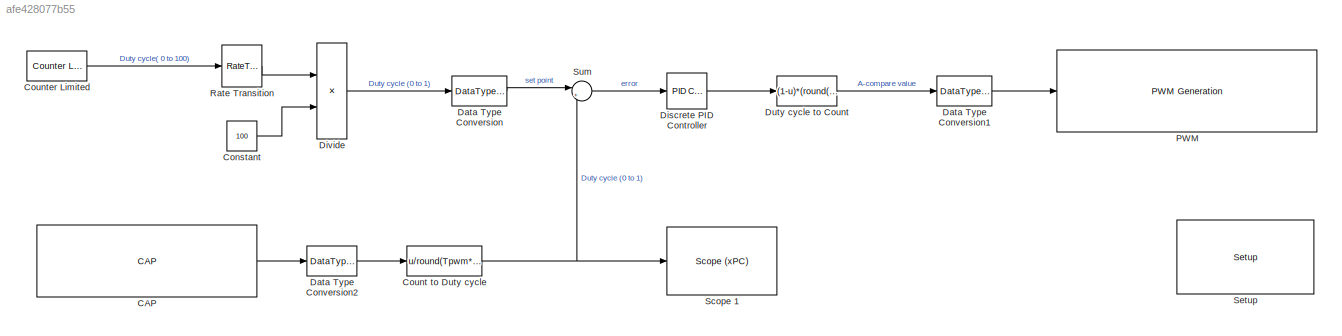
MODEL slx_afe428077b55
KIND model
CONFIG PreLoadFcn = fpga_freq = 33e6;\nTs = 0.001; \nTpwm = 10e-6;
BLOCK [Reference] CAP  REF=speedgoatlib_IO301/CAP/CAP
  Ports = [0, 1]
  SourceBlock = speedgoatlib_IO301/CAP/CAP
  SourceType = cap_IO301
  channel = [1]
  id = 1
  pciSlot = -1
  period = [0]
  startEvent = [1]
  stopEvent = [0]
  ts = Ts
BLOCK [Constant] Constant
  SampleTime = Ts
  Value = 100
BLOCK [Fcn] Count to Duty cycle
  Expr = u/round(Tpwm*fpga_freq-1)
BLOCK [Reference] Counter Limited  REF=simulink/Sources/Counter
Limited
  Ports = [0, 1]
  SourceBlock = simulink/Sources/Counter\nLimited
  SourceType = Counter Limited
  tsamp = 0.02
  uplimit = 100
BLOCK [DataTypeConversion] Data Type Conversion
  OutDataTypeStr = double
  RndMeth = Floor
  SaturateOnIntegerOverflow = off
BLOCK [DataTypeConversion] Data Type Conversion1
  OutDataTypeStr = uint32
  RndMeth = Floor
  SaturateOnIntegerOverflow = off
BLOCK [DataTypeConversion] Data Type Conversion2
  OutDataTypeStr = double
  RndMeth = Floor
  SaturateOnIntegerOverflow = off
BLOCK [Reference] Discrete PID Controller  REF=simulink/Continuous/PID Controller
  AntiWindupMode = none
  Controller = PID
  D = 0
  DOutDataTypeStr = Inherit: Inherit via internal rule
  DOutMax = []
  DOutMin = []
  DParamDataTypeStr = Inherit: Inherit via internal rule
  DParamMax = []
  DParamMin = []
  ExternalReset = none
  FilterContinuousStateAttributes = ''
  FilterMethod = Forward Euler
  FilterOutDataTypeStr = Inherit: Inherit via internal rule
  FilterOutMax = []
  FilterOutMin = []
  FilterRTWStateStorageClass = Auto
  FilterStateMustResolveToSignalObject = off
  Form = Parallel
  I = 316.768608633401
  IOutDataTypeStr = Inherit: Inherit via internal rule
  IOutMax = []
  IOutMin = []
  IParamDataTypeStr = Inherit: Inherit via internal rule
  IParamMax = []
  IParamMin = []
  IgnoreLimit = off
  InitialConditionForFilter = 0
  InitialConditionForIntegrator = 0
  InitialConditionSource = internal
  IntegratorContinuousStateAttributes = ''
  IntegratorMethod = Forward Euler
  IntegratorOutDataTypeStr = Inherit: Inherit via internal rule
  IntegratorOutMax = []
  IntegratorOutMin = []
  IntegratorRTWStateStorageClass = Auto
  IntegratorStateMustResolveToSignalObject = off
  Kb = 1
  KbOutDataTypeStr = Inherit: Inherit via internal rule
  KbOutMax = []
  KbOutMin = []
  KbParamDataTypeStr = Inherit: Inherit via internal rule
  KbParamMax = []
  KbParamMin = []
  Kt = 1
  KtOutDataTypeStr = Inherit: Inherit via internal rule
  KtOutMax = []
  KtOutMin = []
  KtParamDataTypeStr = Inherit: Inherit via internal rule
  KtParamMax = []
  KtParamMin = []
  LimitOutput = off
  LinearizeAsGain = off
  LockScale = off
  LowerSaturationLimit = -inf
  N = 100
  NOutDataTypeStr = Inherit: Inherit via internal rule
  NOutMax = []
  NOutMin = []
  NParamDataTypeStr = Inherit: Inherit via internal rule
  NParamMax = []
  NParamMin = []
  P = 0.158384304316701
  POutDataTypeStr = Inherit: Inherit via internal rule
  POutMax = []
  POutMin = []
  PParamDataTypeStr = Inherit: Inherit via internal rule
  PParamMax = []
  PParamMin = []
  Ports = [1, 1]
  RndMeth = Floor
  SampleTime = -1
  SaturateOnIntegerOverflow = off
  SaturationOutDataTypeStr = Inherit: Same as input
  SaturationOutMax = []
  SaturationOutMin = []
  SourceBlock = simulink/Continuous/PID Controller
  SourceType = PID 1dof
  SumAccumDataTypeStr = Inherit: Inherit via internal rule
  SumDAccumDataTypeStr = Inherit: Inherit via internal rule
  SumDOutDataTypeStr = Inherit: Inherit via internal rule
  SumDOutMax = []
  SumDOutMin = []
  SumI1AccumDataTypeStr = Inherit: Inherit via internal rule
  SumI1OutDataTypeStr = Inherit: Inherit via internal rule
  SumI1OutMax = []
  SumI1OutMin = []
  SumI2AccumDataTypeStr = Inherit: Inherit via internal rule
  SumI2OutDataTypeStr = Inherit: Inherit via internal rule
  SumI2OutMax = []
  SumI2OutMin = []
  SumI3AccumDataTypeStr = Inherit: Inherit via internal rule
  SumI3OutDataTypeStr = Inherit: Inherit via internal rule
  SumI3OutMax = []
  SumI3OutMin = []
  SumOutDataTypeStr = Inherit: Inherit via internal rule
  SumOutMax = []
  SumOutMin = []
  TimeDomain = Discrete-time
  TrackingMode = off
  UpperSaturationLimit = inf
  ZeroCross = on
BLOCK [Product] Divide
  InputSameDT = off
  Inputs = */
  OutDataTypeStr = Inherit: Inherit via internal rule
  Ports = [2, 1]
  RndMeth = Floor
  SampleTime = Ts
  SaturateOnIntegerOverflow = off
BLOCK [Fcn] Duty cycle to Count
  Expr = (1-u)*(round(Tpwm*fpga_freq/2)-1)
BLOCK [Reference] PWM  REF=speedgoatlib_IO301/PWM Generation/PWM Generation
  Ports = [1]
  SourceBlock = speedgoatlib_IO301/PWM Generation/PWM Generation
  SourceType = pwm_IO301
  channel = [1]
  group = Module setup
  id = 1
  initA = [1]
  initActionA = [0,0,2,1]'
  initActionB = [0,0,2,1]'
  initB = [1]
  initC = [round(fpga_freq*Tpwm/2)-1]
  initStart = [1]
  pciSlot = -1
  protection = [0]
  showA = on
  showAStart = off
  showAStop = off
  showActionA = off
  showActionB = off
  showB = off
  showBStart = off
  showBStop = off
  showC = off
  showStart = off
  toggleAStart = [0]
  toggleAStop = [0]
  toggleBStart = [1]
  toggleBStop = [0]
  triggerPulseLength = 32
  triggerSource = [1]
  ts = -1
BLOCK [RateTransition] Rate Transition
BLOCK [Reference] Scope 1  REF=xpclib/Misc./Scope (xPC) 
  Ports = [1]
  SourceBlock = xpclib/Misc./Scope (xPC)
  SourceType = xpcscopeblock
  autorestart = off
  autostart = on
  dynamicfilemode = off
  filename = data.dat
  formatstr = '%15.6f'
  grid = on
  interleave = 1
  maxwritefilesize = 512*1024^2
  mode = Lazy
  noprepostsamples = 0
  nosamples = 4000
  scopeno = 1
  scopetype = Target
  triggerlevel = 0.0
  triggermode = FreeRun
  triggersample = 0
  triggerscope = 1
  triggersignal = 1
  triggerslope = Either
  trigsignalfromport = off
  viewmode = Graphical redraw
  writesize = 512
  ylimits = [0,0]
BLOCK [Reference] Setup  REF=speedgoatlib_IO301/Setup/Setup
  Ports = []
  SourceBlock = speedgoatlib_IO301/Setup/Setup
  SourceType = setup_IO301
  fpga1 = speedgoat_IO301_default
  group = Module setup
  id = 1
  lowerDirection = [1, 1, 1, 1, 1, 0, 0, 0, 0, 0, 0, 0, 1, 1, 1, 1]
  lowerReset = [1]
  lowerValue = [0]
  pciSlot = -1
  upperDirection = [1, 1, 1, 1, 1, 1, 1, 1, 0, 0, 0, 0, 0, 0, 0, 0]
  upperReset = [1]
  upperValue = [0]
BLOCK [Sum] Sum
  IconShape = round
  InputSameDT = off
  Inputs = |+-
  OutDataTypeStr = Inherit: Inherit via internal rule
  Ports = [2, 1]
  SaturateOnIntegerOverflow = off
LINE CAP:1 -> Data Type Conversion2:1
LINE Constant:1 -> Divide:2
NET Count to Duty cycle:1 -> Scope 1:1, Sum:2
LINE Counter Limited:1 -> Rate Transition:1
LINE Data Type Conversion1:1 -> PWM:1
LINE Data Type Conversion2:1 -> Count to Duty cycle:1
LINE Data Type Conversion:1 -> Sum:1
LINE Discrete PID Controller:1 -> Duty cycle to Count:1
LINE Divide:1 -> Data Type Conversion:1
LINE Duty cycle to Count:1 -> Data Type Conversion1:1
LINE Rate Transition:1 -> Divide:1
LINE Sum:1 -> Discrete PID Controller:1
note: NET lines group one-source signal fan-out (src -> all destinations, sorted); 1:1 wires keep LINE
